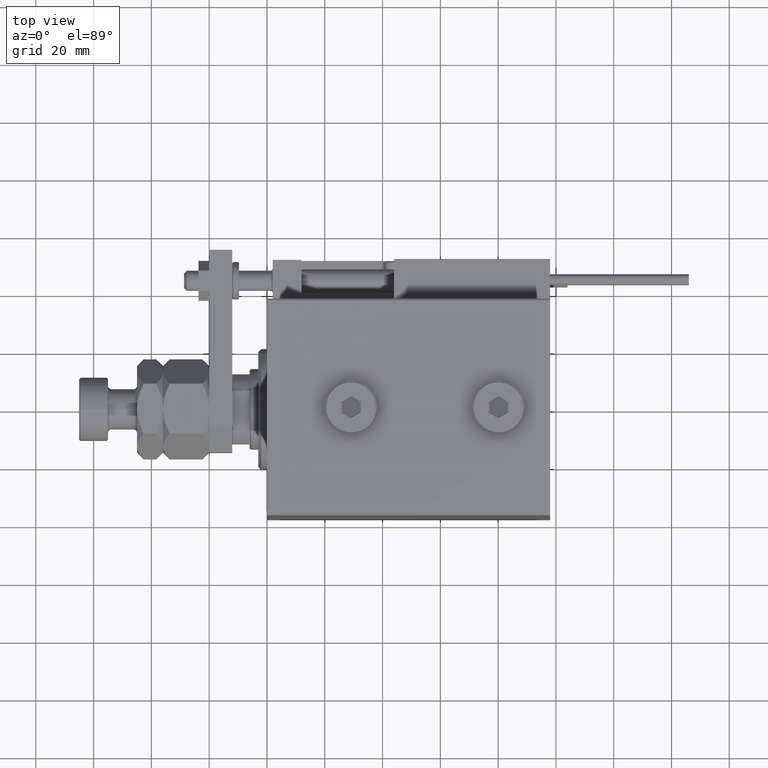
[diagram: clean part render]
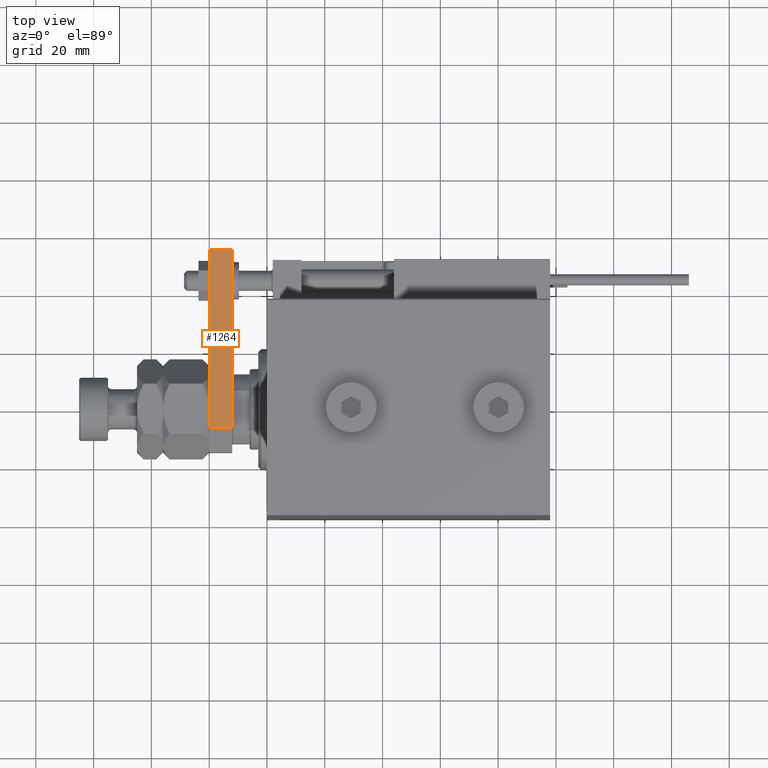
[diagram: same view with one face highlighted and labeled with its STEP entity id]
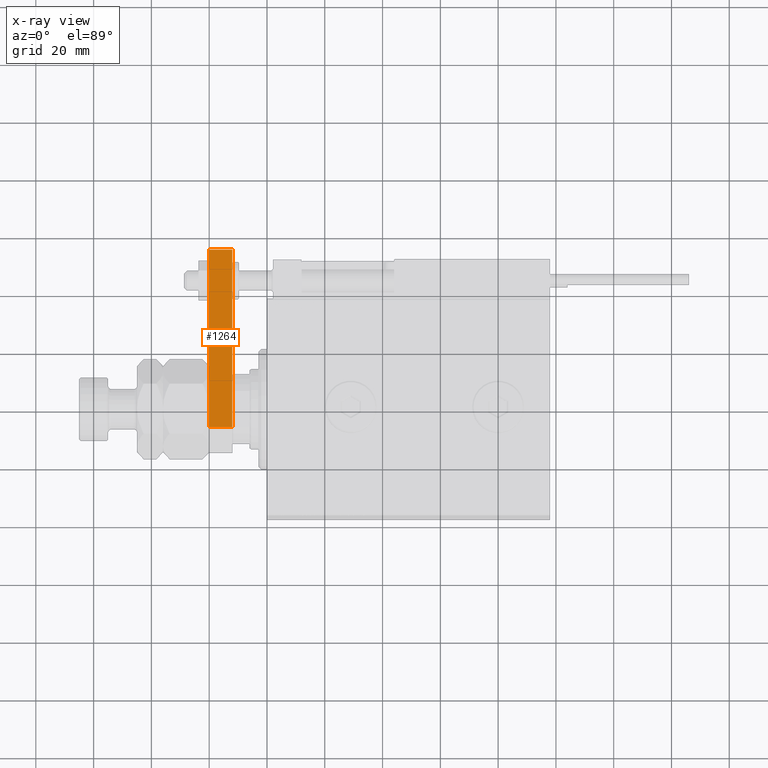
[diagram: x-ray of the same camera — body ghosted, the highlighted face saturated]
A machine part, top view. The second image highlights one B-rep face of the part: STEP entity #1264.
The next image is the same camera in x-ray: the body ghosted, the highlighted face saturated — about 0% of this face is hidden behind the body in this view.
In plain terms, the highlighted planar face has unit normal (-0, -0, -1).
Its self-contained STEP definition (entity closure, byte-faithful):
#1264 = ADVANCED_FACE ( 'NONE', ( #34003 ), #30475, .F. ) ;
#2093 = DIRECTION ( 'NONE',  ( -0.000000000000000000, -0.000000000000000000, -1.000000000000000000 ) ) ;
#2164 = LINE ( 'NONE', #39128, #9213 ) ;
#3384 = EDGE_CURVE ( 'NONE', #19149, #15172, #42887, .T. ) ;
#5239 = LINE ( 'NONE', #26810, #48641 ) ;
#5693 = CARTESIAN_POINT ( 'NONE',  ( 15.00000000000000355, 8.500000000000007105, 8.000000000000000000 ) ) ;
#6739 = DIRECTION ( 'NONE',  ( -4.956352788505162775E-17, 1.000000000000000000, 0.000000000000000000 ) ) ;
#9213 = VECTOR ( 'NONE', #6739, 1000.000000000000000 ) ;
#9495 = ORIENTED_EDGE ( 'NONE', *, *, #23354, .F. ) ;
#13965 = AXIS2_PLACEMENT_3D ( 'NONE', #14274, #38309, #18319 ) ;
#14274 = CARTESIAN_POINT ( 'NONE',  ( 15.00000000000000355, 0.000000000000000000, 8.000000000000000000 ) ) ;
#15172 = VERTEX_POINT ( 'NONE', #27483 ) ;
#15253 = VERTEX_POINT ( 'NONE', #42806 ) ;
#17563 = CARTESIAN_POINT ( 'NONE',  ( 15.00000000000000355, 8.500000000000007105, 8.000000000000000000 ) ) ;
#18319 = DIRECTION ( 'NONE',  ( 4.956352788505162775E-17, -1.000000000000000000, 0.000000000000000000 ) ) ;
#19149 = VERTEX_POINT ( 'NONE', #5693 ) ;
#21125 = VECTOR ( 'NONE', #2093, 1000.000000000000000 ) ;
#23354 = EDGE_CURVE ( 'NONE', #15253, #28391, #34476, .T. ) ;
#24956 = VECTOR ( 'NONE', #38329, 1000.000000000000000 ) ;
#26810 = CARTESIAN_POINT ( 'NONE',  ( 15.00000000000000355, 0.000000000000000000, 0.000000000000000000 ) ) ;
#27030 = EDGE_CURVE ( 'NONE', #19149, #15253, #2164, .T. ) ;
#27483 = CARTESIAN_POINT ( 'NONE',  ( 15.00000000000000355, 8.500000000000007105, 0.000000000000000000 ) ) ;
#27661 = EDGE_LOOP ( 'NONE', ( #31598, #42512, #34818, #9495 ) ) ;
#28391 = VERTEX_POINT ( 'NONE', #31145 ) ;
#30475 = PLANE ( 'NONE',  #13965 ) ;
#31145 = CARTESIAN_POINT ( 'NONE',  ( 15.00000000000000000, 70.00000000000000000, 0.000000000000000000 ) ) ;
#31598 = ORIENTED_EDGE ( 'NONE', *, *, #27030, .F. ) ;
#34003 = FACE_OUTER_BOUND ( 'NONE', #27661, .T. ) ;
#34476 = LINE ( 'NONE', #50911, #21125 ) ;
#34818 = ORIENTED_EDGE ( 'NONE', *, *, #40926, .T. ) ;
#38309 = DIRECTION ( 'NONE',  ( -1.000000000000000000, -4.956352788505162775E-17, 0.000000000000000000 ) ) ;
#38329 = DIRECTION ( 'NONE',  ( 0.000000000000000000, 0.000000000000000000, -1.000000000000000000 ) ) ;
#39128 = CARTESIAN_POINT ( 'NONE',  ( 15.00000000000000355, 0.000000000000000000, 8.000000000000000000 ) ) ;
#40926 = EDGE_CURVE ( 'NONE', #15172, #28391, #5239, .T. ) ;
#42512 = ORIENTED_EDGE ( 'NONE', *, *, #3384, .T. ) ;
#42806 = CARTESIAN_POINT ( 'NONE',  ( 15.00000000000000000, 70.00000000000000000, 8.000000000000000000 ) ) ;
#42887 = LINE ( 'NONE', #17563, #24956 ) ;
#48641 = VECTOR ( 'NONE', #52130, 1000.000000000000000 ) ;
#50911 = CARTESIAN_POINT ( 'NONE',  ( 15.00000000000000000, 70.00000000000000000, 8.000000000000000000 ) ) ;
#52130 = DIRECTION ( 'NONE',  ( -4.956352788505162775E-17, 1.000000000000000000, 0.000000000000000000 ) ) ;